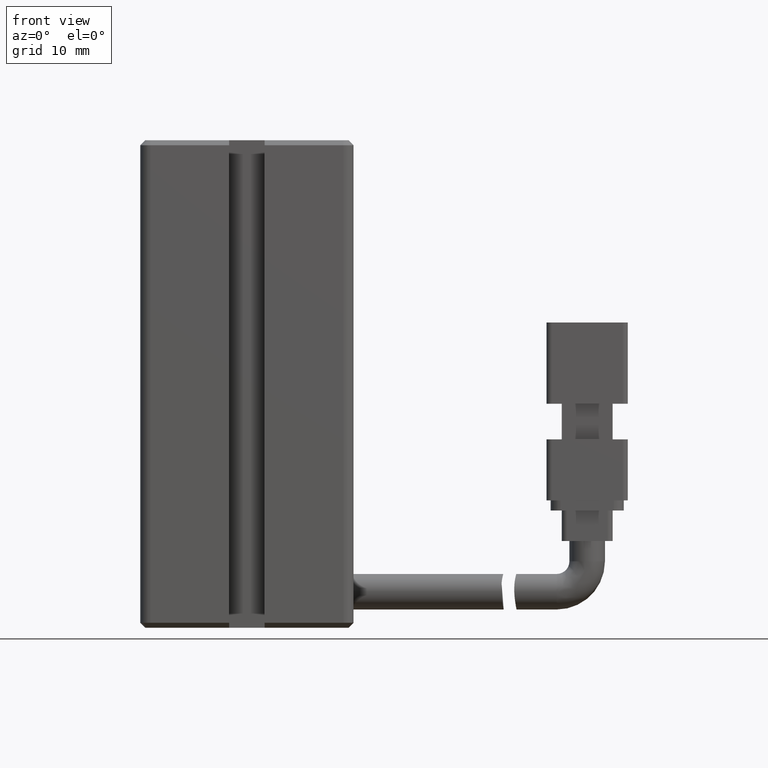
[diagram: clean part render]
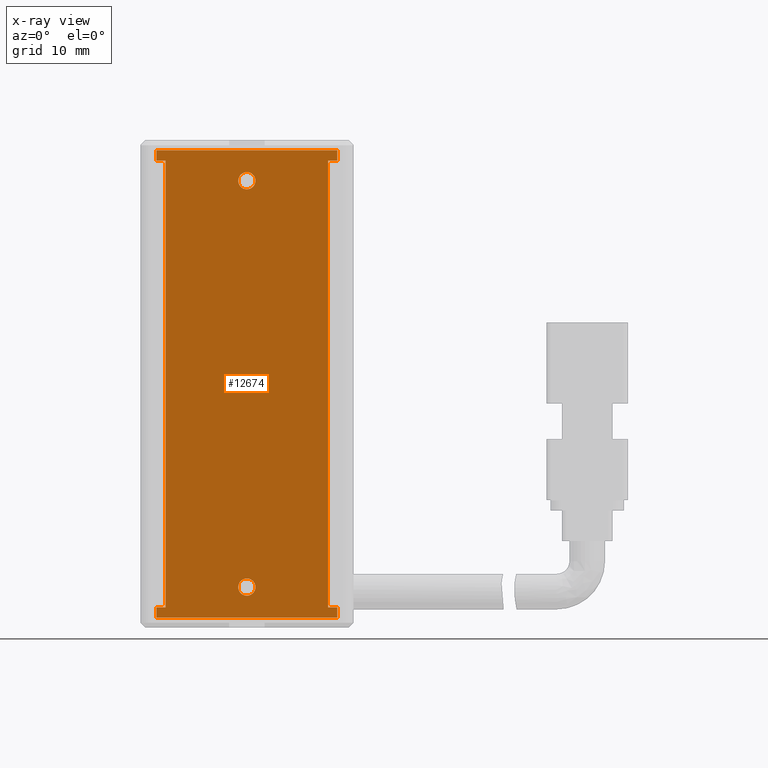
[diagram: x-ray — body ghosted, one internal face saturated and labeled with its STEP entity id]
A machine part, front view, then the same camera in x-ray: the body is ghosted and one INTERNAL B-rep face — a face not visible from any outside direction — is saturated and labeled: STEP entity #12674.
In plain terms, the highlighted planar face has unit normal (-0, 1, 0).
Its self-contained STEP definition (entity closure, byte-faithful):
#93 = VECTOR ( 'NONE', #17213, 1000.000000000000000 ) ;
#923 = VECTOR ( 'NONE', #23528, 1000.000000000000000 ) ;
#1184 = CARTESIAN_POINT ( 'NONE',  ( 49.82537974683543100, 31.49073232304836600, -92.00000000000001400 ) ) ;
#1480 = FACE_OUTER_BOUND ( 'NONE', #5436, .T. ) ;
#1649 = LINE ( 'NONE', #34677, #26863 ) ;
#1785 = VECTOR ( 'NONE', #20017, 1000.000000000000000 ) ;
#2486 = CIRCLE ( 'NONE', #34718, 0.8499999999999896500 ) ;
#3167 = CARTESIAN_POINT ( 'NONE',  ( 32.02537974683542600, 31.49073232304836600, -92.00000000000001400 ) ) ;
#3185 = ORIENTED_EDGE ( 'NONE', *, *, #33554, .F. ) ;
#3202 = CARTESIAN_POINT ( 'NONE',  ( 49.82537974683543100, 31.49073232304836600, -138.0000000000000000 ) ) ;
#3530 = CARTESIAN_POINT ( 'NONE',  ( 49.82537974683543100, 31.49073232304836600, -93.00000000000000000 ) ) ;
#3634 = CARTESIAN_POINT ( 'NONE',  ( 32.02537974683542600, 31.49073232304836600, -138.0000000000000000 ) ) ;
#3743 = CARTESIAN_POINT ( 'NONE',  ( 49.82537974683543100, 31.49073232304836600, -92.00000000000001400 ) ) ;
#3816 = CARTESIAN_POINT ( 'NONE',  ( 49.82537974683543100, 31.49073232304836600, -92.00000000000001400 ) ) ;
#4617 = CARTESIAN_POINT ( 'NONE',  ( 32.02537974683542600, 31.49073232304836600, -137.0000000000000000 ) ) ;
#4993 = CARTESIAN_POINT ( 'NONE',  ( 40.92537974683542500, 31.49073232304836600, -95.00000000000001400 ) ) ;
#4998 = CARTESIAN_POINT ( 'NONE',  ( 40.92537974683542500, 31.49073232304836600, -137.0000000000000000 ) ) ;
#5429 = EDGE_CURVE ( 'NONE', #19966, #30997, #7039, .T. ) ;
#5436 = EDGE_LOOP ( 'NONE', ( #29068, #18532, #6481, #32290, #20500, #38348, #32476, #10901, #3185, #21502, #15644, #10497 ) ) ;
#6105 = VECTOR ( 'NONE', #37079, 1000.000000000000000 ) ;
#6163 = CARTESIAN_POINT ( 'NONE',  ( 49.82537974683543100, 31.49073232304836600, -137.0000000000000000 ) ) ;
#6447 = LINE ( 'NONE', #30188, #18151 ) ;
#6481 = ORIENTED_EDGE ( 'NONE', *, *, #27631, .T. ) ;
#6893 = DIRECTION ( 'NONE',  ( 1.548860246407863500E-017, 0.0000000000000000000, 1.000000000000000000 ) ) ;
#7039 = LINE ( 'NONE', #8061, #93 ) ;
#8061 = CARTESIAN_POINT ( 'NONE',  ( 49.82537974683543100, 31.49073232304836600, -138.0000000000000000 ) ) ;
#8090 = DIRECTION ( 'NONE',  ( 0.0000000000000000000, 0.0000000000000000000, 1.000000000000000000 ) ) ;
#8187 = DIRECTION ( 'NONE',  ( -1.000000000000000000, -0.0000000000000000000, -0.0000000000000000000 ) ) ;
#8356 = AXIS2_PLACEMENT_3D ( 'NONE', #4993, #25734, #8090 ) ;
#10497 = ORIENTED_EDGE ( 'NONE', *, *, #29981, .F. ) ;
#10684 = LINE ( 'NONE', #38427, #36491 ) ;
#10901 = ORIENTED_EDGE ( 'NONE', *, *, #13872, .F. ) ;
#11131 = DIRECTION ( 'NONE',  ( -0.0000000000000000000, -0.0000000000000000000, -1.000000000000000000 ) ) ;
#11164 = VERTEX_POINT ( 'NONE', #4617 ) ;
#11179 = CARTESIAN_POINT ( 'NONE',  ( 40.92537974683542500, 31.49073232304836600, -95.85000000000002300 ) ) ;
#11454 = CARTESIAN_POINT ( 'NONE',  ( 40.92537974683542500, 31.49073232304836600, -135.0000000000000000 ) ) ;
#11568 = CARTESIAN_POINT ( 'NONE',  ( 40.92537974683542500, 31.49073232304836600, -95.00000000000001400 ) ) ;
#11873 = LINE ( 'NONE', #3167, #13731 ) ;
#11913 = CARTESIAN_POINT ( 'NONE',  ( 32.92537974683542500, 31.49073232304836600, -91.00000000000000000 ) ) ;
#11962 = VERTEX_POINT ( 'NONE', #3530 ) ;
#12014 = DIRECTION ( 'NONE',  ( 1.548860246407863500E-017, 0.0000000000000000000, 1.000000000000000000 ) ) ;
#12249 = VERTEX_POINT ( 'NONE', #11179 ) ;
#12674 = ADVANCED_FACE ( 'NONE', ( #33718, #34672, #1480 ), #37286, .F. ) ;
#12751 = EDGE_CURVE ( 'NONE', #28647, #36276, #26245, .T. ) ;
#13521 = VERTEX_POINT ( 'NONE', #6163 ) ;
#13731 = VECTOR ( 'NONE', #12014, 1000.000000000000000 ) ;
#13872 = EDGE_CURVE ( 'NONE', #14145, #13521, #14371, .T. ) ;
#14145 = VERTEX_POINT ( 'NONE', #30198 ) ;
#14371 = LINE ( 'NONE', #4998, #1785 ) ;
#14430 = DIRECTION ( 'NONE',  ( -0.0000000000000000000, -1.000000000000000000, -0.0000000000000000000 ) ) ;
#14867 = CARTESIAN_POINT ( 'NONE',  ( 40.92537974683542500, 31.49073232304836600, -134.1500000000000100 ) ) ;
#14975 = CARTESIAN_POINT ( 'NONE',  ( 32.02537974683543400, 31.49073232304836600, -92.00000000000001400 ) ) ;
#14981 = LINE ( 'NONE', #16074, #6105 ) ;
#15126 = EDGE_CURVE ( 'NONE', #31496, #11164, #6447, .T. ) ;
#15644 = ORIENTED_EDGE ( 'NONE', *, *, #17948, .F. ) ;
#16074 = CARTESIAN_POINT ( 'NONE',  ( 49.82537974683543100, 31.49073232304836600, -92.00000000000001400 ) ) ;
#16416 = VERTEX_POINT ( 'NONE', #20009 ) ;
#17213 = DIRECTION ( 'NONE',  ( -1.000000000000000000, -0.0000000000000000000, 1.548860246407863500E-017 ) ) ;
#17948 = EDGE_CURVE ( 'NONE', #23352, #11962, #33382, .T. ) ;
#18138 = DIRECTION ( 'NONE',  ( 1.000000000000000000, -0.0000000000000000000, 0.0000000000000000000 ) ) ;
#18151 = VECTOR ( 'NONE', #33263, 1000.000000000000000 ) ;
#18532 = ORIENTED_EDGE ( 'NONE', *, *, #34203, .T. ) ;
#18946 = VERTEX_POINT ( 'NONE', #14975 ) ;
#19060 = DIRECTION ( 'NONE',  ( 0.0000000000000000000, 0.0000000000000000000, 1.000000000000000000 ) ) ;
#19180 = DIRECTION ( 'NONE',  ( -0.0000000000000000000, 1.000000000000000000, 0.0000000000000000000 ) ) ;
#19966 = VERTEX_POINT ( 'NONE', #3202 ) ;
#20009 = CARTESIAN_POINT ( 'NONE',  ( 32.02537974683542600, 31.49073232304836600, -93.00000000000000000 ) ) ;
#20017 = DIRECTION ( 'NONE',  ( 1.000000000000000000, 0.0000000000000000000, 0.0000000000000000000 ) ) ;
#20074 = CARTESIAN_POINT ( 'NONE',  ( 40.92537974683542500, 31.49073232304836600, -94.15000000000000600 ) ) ;
#20195 = VECTOR ( 'NONE', #18138, 1000.000000000000000 ) ;
#20500 = ORIENTED_EDGE ( 'NONE', *, *, #35970, .F. ) ;
#20679 = DIRECTION ( 'NONE',  ( -1.548860246407863500E-017, -0.0000000000000000000, -1.000000000000000000 ) ) ;
#21502 = ORIENTED_EDGE ( 'NONE', *, *, #30512, .F. ) ;
#22363 = VECTOR ( 'NONE', #8187, 1000.000000000000000 ) ;
#23100 = CARTESIAN_POINT ( 'NONE',  ( 32.92537974683542500, 31.49073232304836600, -93.00000000000000000 ) ) ;
#23138 = CARTESIAN_POINT ( 'NONE',  ( 48.92537974683541800, 31.49073232304836600, -93.00000000000000000 ) ) ;
#23285 = EDGE_LOOP ( 'NONE', ( #28752, #26034 ) ) ;
#23352 = VERTEX_POINT ( 'NONE', #3816 ) ;
#23411 = DIRECTION ( 'NONE',  ( 1.548860246407863500E-017, 0.0000000000000000000, 1.000000000000000000 ) ) ;
#23528 = DIRECTION ( 'NONE',  ( -0.0000000000000000000, -0.0000000000000000000, -1.000000000000000000 ) ) ;
#23546 = CARTESIAN_POINT ( 'NONE',  ( 32.02537974683542600, 31.49073232304836600, -92.00000000000001400 ) ) ;
#23569 = AXIS2_PLACEMENT_3D ( 'NONE', #37148, #34225, #19060 ) ;
#24069 = VERTEX_POINT ( 'NONE', #20074 ) ;
#24130 = CIRCLE ( 'NONE', #8356, 0.8500000000000035300 ) ;
#24638 = EDGE_CURVE ( 'NONE', #13521, #19966, #10684, .T. ) ;
#25160 = VECTOR ( 'NONE', #23411, 1000.000000000000000 ) ;
#25173 = VERTEX_POINT ( 'NONE', #23100 ) ;
#25734 = DIRECTION ( 'NONE',  ( -0.0000000000000000000, -1.000000000000000000, -0.0000000000000000000 ) ) ;
#26034 = ORIENTED_EDGE ( 'NONE', *, *, #29192, .F. ) ;
#26245 = CIRCLE ( 'NONE', #23569, 0.8499999999999896500 ) ;
#26863 = VECTOR ( 'NONE', #11131, 1000.000000000000000 ) ;
#27506 = LINE ( 'NONE', #23546, #25160 ) ;
#27563 = CARTESIAN_POINT ( 'NONE',  ( 30.42537974683542500, 31.49073232304836600, -93.00000000000000000 ) ) ;
#27631 = EDGE_CURVE ( 'NONE', #25173, #31496, #34588, .T. ) ;
#27633 = EDGE_LOOP ( 'NONE', ( #37321, #31709 ) ) ;
#28502 = EDGE_CURVE ( 'NONE', #24069, #12249, #24130, .T. ) ;
#28647 = VERTEX_POINT ( 'NONE', #14867 ) ;
#28752 = ORIENTED_EDGE ( 'NONE', *, *, #28502, .F. ) ;
#28861 = CARTESIAN_POINT ( 'NONE',  ( 40.92537974683542500, 31.49073232304836600, -93.00000000000000000 ) ) ;
#29068 = ORIENTED_EDGE ( 'NONE', *, *, #37606, .F. ) ;
#29192 = EDGE_CURVE ( 'NONE', #12249, #24069, #29592, .T. ) ;
#29194 = VECTOR ( 'NONE', #33932, 1000.000000000000000 ) ;
#29592 = CIRCLE ( 'NONE', #33961, 0.8500000000000035300 ) ;
#29981 = EDGE_CURVE ( 'NONE', #18946, #23352, #14981, .T. ) ;
#30188 = CARTESIAN_POINT ( 'NONE',  ( 40.92537974683542500, 31.49073232304836600, -137.0000000000000000 ) ) ;
#30198 = CARTESIAN_POINT ( 'NONE',  ( 48.92537974683541800, 31.49073232304836600, -137.0000000000000000 ) ) ;
#30512 = EDGE_CURVE ( 'NONE', #11962, #36569, #38372, .T. ) ;
#30997 = VERTEX_POINT ( 'NONE', #3634 ) ;
#31496 = VERTEX_POINT ( 'NONE', #36034 ) ;
#31634 = AXIS2_PLACEMENT_3D ( 'NONE', #1184, #19180, #6893 ) ;
#31709 = ORIENTED_EDGE ( 'NONE', *, *, #38843, .F. ) ;
#32013 = DIRECTION ( 'NONE',  ( -0.0000000000000000000, -1.000000000000000000, -0.0000000000000000000 ) ) ;
#32290 = ORIENTED_EDGE ( 'NONE', *, *, #15126, .T. ) ;
#32405 = DIRECTION ( 'NONE',  ( 0.0000000000000000000, 0.0000000000000000000, 1.000000000000000000 ) ) ;
#32476 = ORIENTED_EDGE ( 'NONE', *, *, #24638, .F. ) ;
#32769 = DIRECTION ( 'NONE',  ( 0.0000000000000000000, 0.0000000000000000000, 1.000000000000000000 ) ) ;
#33263 = DIRECTION ( 'NONE',  ( -1.000000000000000000, -0.0000000000000000000, 0.0000000000000000000 ) ) ;
#33382 = LINE ( 'NONE', #3743, #29194 ) ;
#33554 = EDGE_CURVE ( 'NONE', #36569, #14145, #1649, .T. ) ;
#33718 = FACE_BOUND ( 'NONE', #23285, .T. ) ;
#33932 = DIRECTION ( 'NONE',  ( -1.548860246407863500E-017, -0.0000000000000000000, -1.000000000000000000 ) ) ;
#33961 = AXIS2_PLACEMENT_3D ( 'NONE', #11568, #14430, #32769 ) ;
#34203 = EDGE_CURVE ( 'NONE', #16416, #25173, #34239, .T. ) ;
#34225 = DIRECTION ( 'NONE',  ( -0.0000000000000000000, -1.000000000000000000, -0.0000000000000000000 ) ) ;
#34239 = LINE ( 'NONE', #27563, #20195 ) ;
#34588 = LINE ( 'NONE', #11913, #923 ) ;
#34672 = FACE_BOUND ( 'NONE', #27633, .T. ) ;
#34677 = CARTESIAN_POINT ( 'NONE',  ( 48.92537974683541800, 31.49073232304836600, -91.00000000000000000 ) ) ;
#34718 = AXIS2_PLACEMENT_3D ( 'NONE', #11454, #32013, #32405 ) ;
#35970 = EDGE_CURVE ( 'NONE', #30997, #11164, #11873, .T. ) ;
#36034 = CARTESIAN_POINT ( 'NONE',  ( 32.92537974683542500, 31.49073232304836600, -137.0000000000000000 ) ) ;
#36276 = VERTEX_POINT ( 'NONE', #38352 ) ;
#36491 = VECTOR ( 'NONE', #20679, 1000.000000000000000 ) ;
#36569 = VERTEX_POINT ( 'NONE', #23138 ) ;
#37079 = DIRECTION ( 'NONE',  ( 1.000000000000000000, 0.0000000000000000000, -1.548860246407863500E-017 ) ) ;
#37148 = CARTESIAN_POINT ( 'NONE',  ( 40.92537974683542500, 31.49073232304836600, -135.0000000000000000 ) ) ;
#37286 = PLANE ( 'NONE',  #31634 ) ;
#37321 = ORIENTED_EDGE ( 'NONE', *, *, #12751, .F. ) ;
#37606 = EDGE_CURVE ( 'NONE', #16416, #18946, #27506, .T. ) ;
#38348 = ORIENTED_EDGE ( 'NONE', *, *, #5429, .F. ) ;
#38352 = CARTESIAN_POINT ( 'NONE',  ( 40.92537974683542500, 31.49073232304836600, -135.8499999999999900 ) ) ;
#38372 = LINE ( 'NONE', #28861, #22363 ) ;
#38427 = CARTESIAN_POINT ( 'NONE',  ( 49.82537974683543100, 31.49073232304836600, -92.00000000000001400 ) ) ;
#38843 = EDGE_CURVE ( 'NONE', #36276, #28647, #2486, .T. ) ;